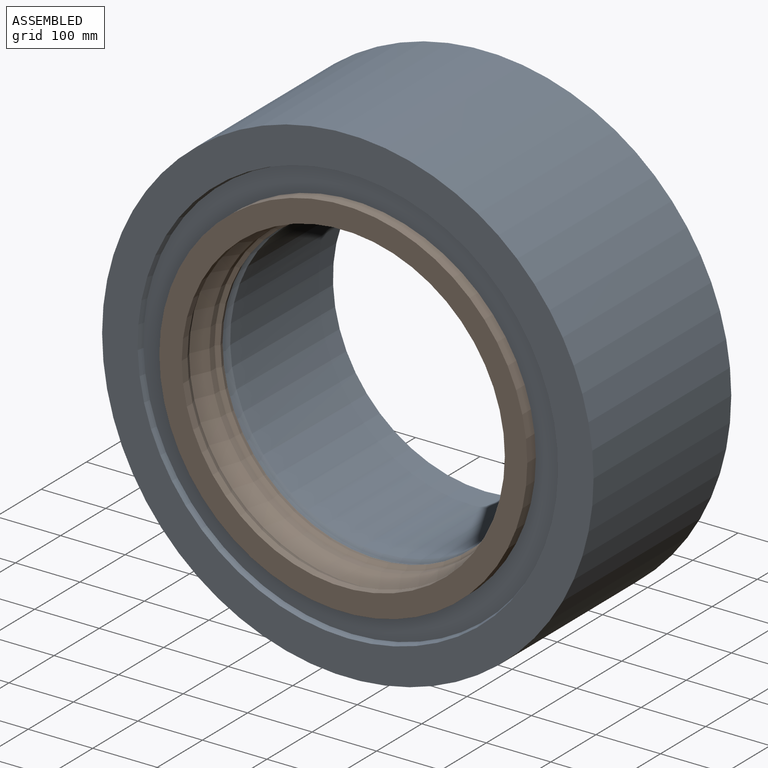
[diagram: assembled view]
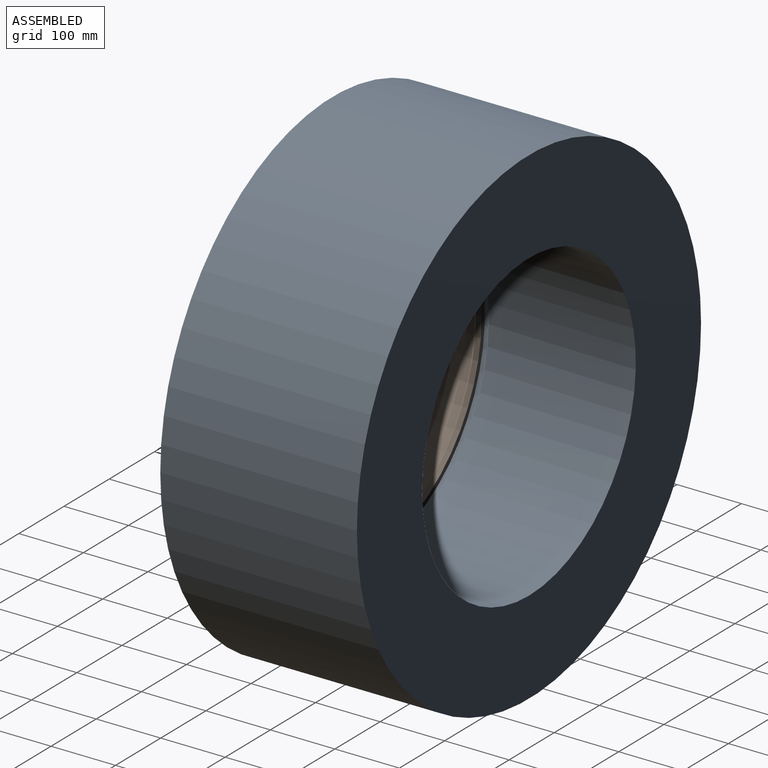
[diagram: assembled view, second angle]
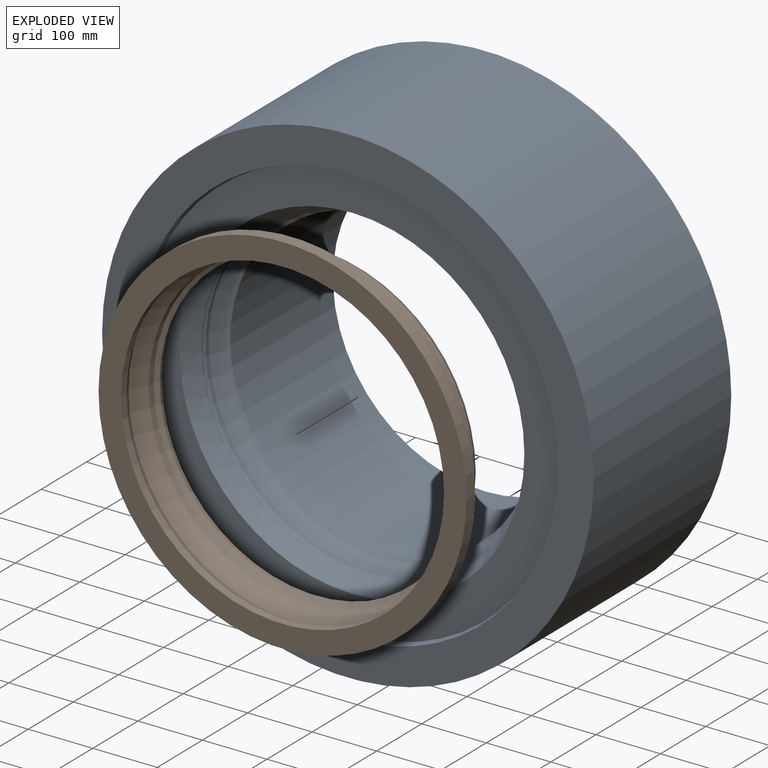
[diagram: exploded view]
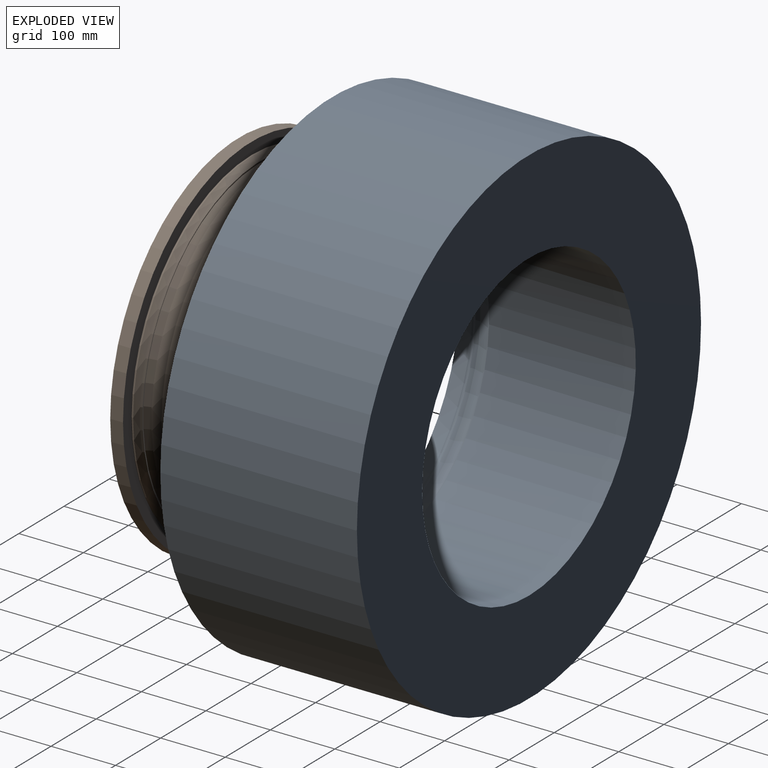
[diagram: exploded view, second angle]
ASSEMBLY  parts=2 mates=2
PART A: 12 faces, bbox 761.9x304.8x761.9 mm
  f0: cylinder r=236.54mm len=473.08mm, axis (0,-1,0), area 338206.6mm2, adj f2,f6
  f1: cylinder r=380.94mm len=761.87mm, axis (0,-1,0), area 729537.2mm2, adj f2,f3
  f2: plane 761.87x761.87mm, normal (0,1,0), area 280112.7mm2, adj f0,f1
  f3: plane 761.87x761.87mm, normal (0,-1,0), area 122198.5mm2, adj f1,f5
  f4: plane 646.89x646.89mm, normal (0,-1,0), area 104713.3mm2, adj f5,f11
  f5: cone r=325.91mm half-angle=14.5deg, axis (0,-1,0), area 20070.3mm2, adj f3,f4
  f6: cone r=240.98mm half-angle=45deg, axis (0,-1,0), area 9420.3mm2, adj f0,f7
  f7: cone r=252.58mm half-angle=30deg, axis (0,-1,0), area 35972.1mm2, adj f6,f8
  f8: cylinder r=252.58mm len=505.16mm, axis (0,1,0), area 11532.2mm2, adj f7,f9
  f9: cone r=254.36mm half-angle=23deg, axis (0,-1,0), area 7246.9mm2, adj f8,f10
  f10: cylinder r=254.36mm len=508.71mm, axis (0,1,0), area 3124.2mm2, adj f9,f11
  f11: cone r=266.99mm half-angle=23deg, axis (0,-1,0), area 52969.5mm2, adj f4,f10
PART B: 24 faces, bbox 121x596x596 mm
  f0: cone r=253.95mm half-angle=67deg, axis (1,0,0), area 6121.2mm2, adj f1,f23
  f1: cone r=258.41mm half-angle=23deg, axis (-1,0,0), area 18398.2mm2, adj f0,f2
  f2: cone r=261.92mm half-angle=67deg, axis (1,0,0), area 6228.2mm2, adj f1,f3
  f3: cone r=263.19mm half-angle=23deg, axis (-1,0,0), area 5371.5mm2, adj f2,f4
  f4: torus R=148.32mm, axis (-1,0,0), area 15188mm2, adj f3,f5
  f5: cone r=266.78mm half-angle=45deg, axis (1,0,0), area 1505.3mm2, adj f4,f6
  f6: torus R=266.35mm, axis (-1,0,0), area 373.7mm2, adj f5,f7
  f7: cylinder r=266.06mm len=532.13mm, axis (-1,0,0), area 3050.5mm2, adj f6,f8
  f8: torus R=266.35mm, axis (-1,0,0), area 747.7mm2, adj f7,f9
  f9: plane 569.6x569.6mm, normal (1,0,0), area 31950.3mm2, adj f8,f10
  f10: cone r=285.19mm half-angle=1.1deg, axis (-1,0,0), area 35050.5mm2, adj f9,f11
  f11: plane 570.38x570.38mm, normal (-1,0,0), area 58498.9mm2, adj f10,f12
  f12: cylinder r=250.42mm len=500.85mm, axis (-1,0,0), area 20031.7mm2, adj f11,f13
  f13: cone r=255.32mm half-angle=24.4deg, axis (1,0,0), area 18800.8mm2, adj f12,f14
  f14: cone r=242.57mm half-angle=25.7deg, axis (-1,0,0), area 46063.5mm2, adj f13,f15
  f15: cylinder r=242.57mm len=485.14mm, axis (-1,0,0), area 17236.2mm2, adj f14,f16
  f16: cone r=237.1mm half-angle=45deg, axis (-1,0,0), area 11647.4mm2, adj f15,f17
  f17: cone r=237.1mm half-angle=15deg, axis (1,0,0), area 11391.9mm2, adj f16,f18
  f18: plane 494.93x494.93mm, normal (1,0,0), area 12825.4mm2, adj f17,f19
  f19: torus R=139.32mm, axis (-1,0,0), area 14306.8mm2, adj f18,f20
  f20: torus R=249.94mm, axis (-1,0,0), area 1738.7mm2, adj f19,f21
  f21: cylinder r=252.22mm len=504.44mm, axis (-1,0,0), area 12652.1mm2, adj f20,f22
  f22: torus R=254.51mm, axis (-1,0,0), area 1454.6mm2, adj f21,f23
  f23: cone r=257.46mm half-angle=23deg, axis (-1,0,0), area 20711.3mm2, adj f0,f22
PLACE A t=(-336.15,-269.22,-722.67)mm
PLACE B rot(axis=(-0.58,-0.58,0.58),120deg) t=(-336.15,-205.09,-722.67)mm
MATE planar B.f0 <-> A.f0  axis (0,1,0) through (-336.15,-259.7,-722.67)mm
MATE cylindrical B.f0 <-> A.f0  axis (0,-1,0) through (-336.15,-279.27,-722.67)mm
